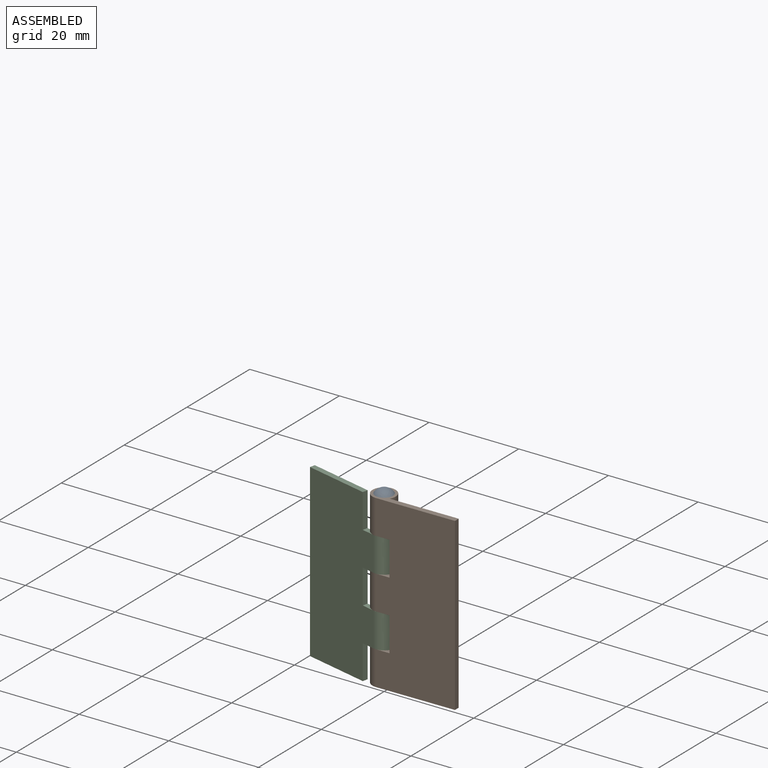
[diagram: assembled view]
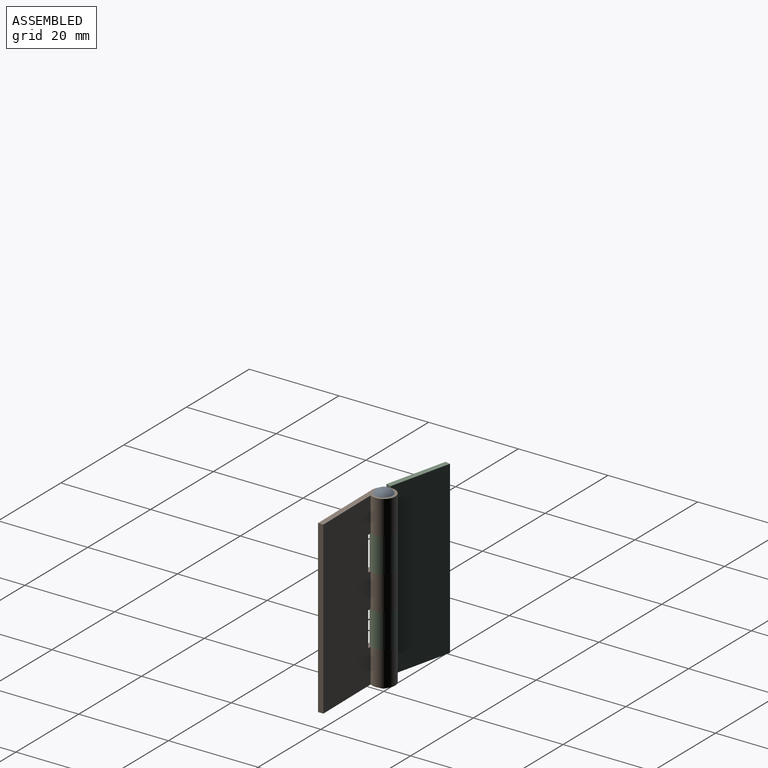
[diagram: assembled view, second angle]
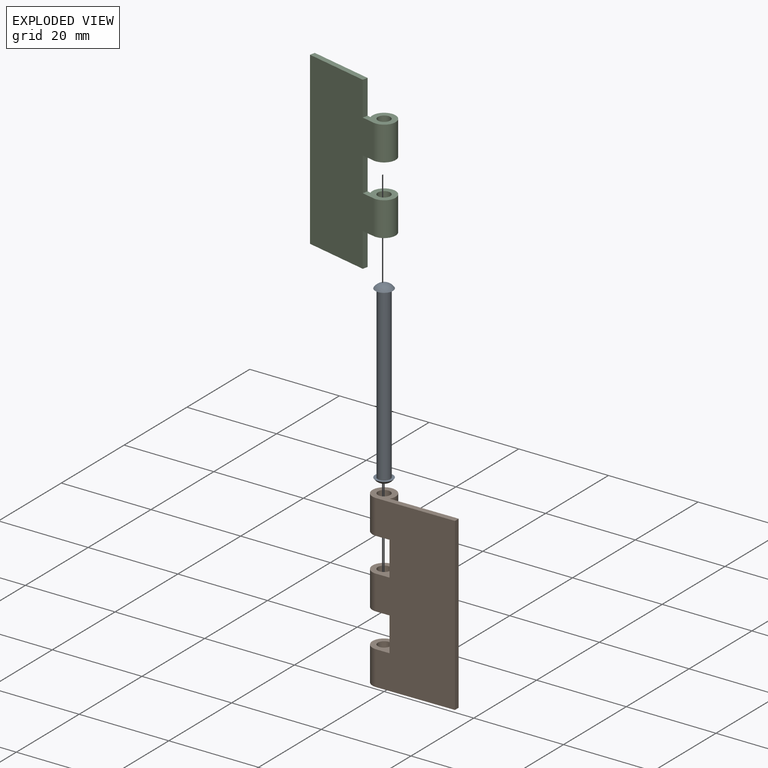
[diagram: exploded view]
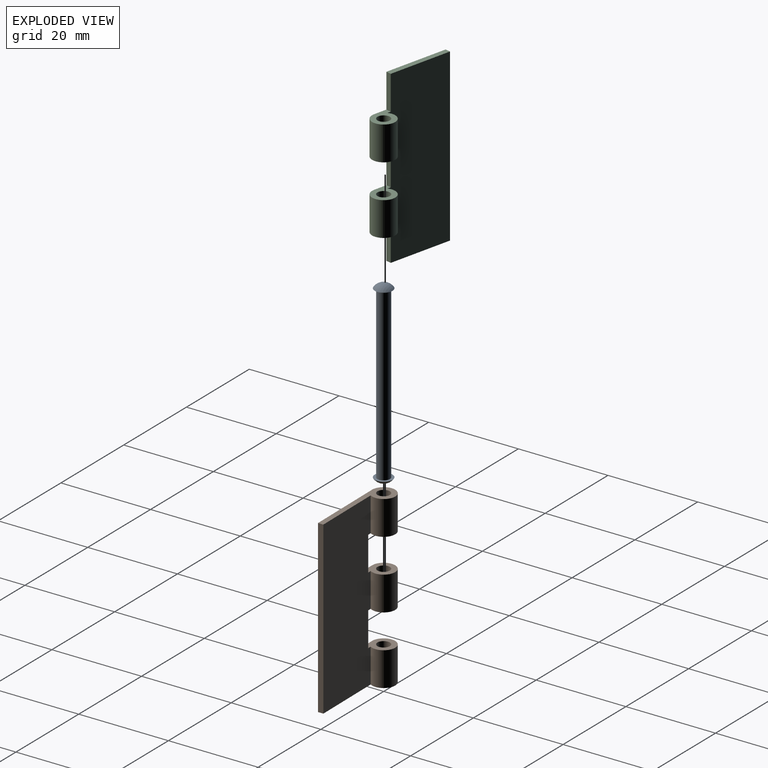
[diagram: exploded view, second angle]
ASSEMBLY  parts=3 mates=2
PART A: 5 faces, bbox 4x4x40.2 mm
  f0: cylinder r=1.39mm len=38.1mm, axis (0,0,-1), area 332.5mm2, adj f3,f4
  f1: sphere r=2.37mm, area 16mm2, adj f3
  f2: sphere r=2.37mm, area 16mm2, adj f4
  f3: plane 3.97x3.97mm, normal (0,0,-1), area 6.3mm2, adj f0,f1
  f4: plane 3.97x3.97mm, normal (0,0,1), area 6.3mm2, adj f0,f2
PART B: 17 faces, bbox 20x5.2x38.1 mm
  f0: cylinder r=1.39mm len=7.62mm, axis (0,0,-1), area 66.5mm2, adj f6,f16
  f1: cylinder r=2.58mm len=7.62mm, axis (0,0,-1), area 103.8mm2, adj f6,f9,f10,f16
  f2: cylinder r=1.39mm len=7.62mm, axis (0,0,-1), area 66.5mm2, adj f7,f12
  f3: cylinder r=2.58mm len=7.62mm, axis (0,0,-1), area 103.8mm2, adj f7,f9,f10,f12
  f4: cylinder r=1.39mm len=7.62mm, axis (0,0,-1), area 66.5mm2, adj f13,f15
  f5: cylinder r=2.58mm len=7.62mm, axis (0,0,-1), area 103.8mm2, adj f9,f10,f13,f15
  f6: plane 20.04x5.16mm, normal (0,0,1), area 33.9mm2, adj f0,f1,f8,f9,f10
  f7: plane 20.04x5.16mm, normal (0,0,-1), area 33.9mm2, adj f2,f3,f8,f9,f10
  f8: plane 38.1x1.19mm, normal (1,0,0), area 45.5mm2, adj f6,f7,f9,f10
  f9: plane 38.1x15.29mm, normal (0,1,0), area 570.5mm2, adj f1,f3,f5,f6,f7,f8,f11,f12
  f10: plane 38.1x17.46mm, normal (0,-1,0), area 620.2mm2, adj f1,f3,f5,f6,f7,f8,f11,f12
  f11: plane 7.62x1.19mm, normal (-1,0,0), area 9.1mm2, adj f9,f10,f12,f13
  f12: plane 5.54x5.16mm, normal (0,0,1), area 16.5mm2, adj f2,f3,f9,f10,f11
  f13: plane 5.54x5.16mm, normal (0,0,-1), area 16.5mm2, adj f4,f5,f9,f10,f11
  f14: plane 7.62x1.19mm, normal (-1,0,0), area 9.1mm2, adj f9,f10,f15,f16
  f15: plane 5.54x5.16mm, normal (0,0,1), area 16.5mm2, adj f4,f5,f9,f10,f14
  f16: plane 5.54x5.16mm, normal (0,0,-1), area 16.5mm2, adj f0,f1,f9,f10,f14
PART C: 16 faces, bbox 20x5.2x38.1 mm
  f0: cylinder r=1.39mm len=7.62mm, axis (0,0,-1), area 66.5mm2, adj f14,f15
  f1: cylinder r=2.58mm len=7.62mm, axis (0,0,-1), area 103.8mm2, adj f7,f9,f14,f15
  f2: cylinder r=1.39mm len=7.62mm, axis (0,0,-1), area 66.5mm2, adj f12,f13
  f3: cylinder r=2.58mm len=7.62mm, axis (0,0,-1), area 103.8mm2, adj f7,f9,f12,f13
  f4: plane 7.62x1.19mm, normal (1,0,0), area 9.1mm2, adj f7,f9,f12,f15
  f5: plane 7.62x1.19mm, normal (1,0,0), area 9.1mm2, adj f7,f9,f10,f14
  f6: plane 38.1x1.19mm, normal (-1,0,0), area 45.5mm2, adj f7,f9,f10,f11
  f7: plane 38.1x17.46mm, normal (0,-1,0), area 597.6mm2, adj f1,f3,f4,f5,f6,f8,f10,f11
  f8: plane 7.62x1.19mm, normal (1,0,0), area 9.1mm2, adj f7,f9,f11,f13
  f9: plane 38.1x15.29mm, normal (0,1,0), area 564.5mm2, adj f1,f3,f4,f5,f6,f8,f10,f11
  f10: plane 14.5x1.19mm, normal (0,0,1), area 17.3mm2, adj f5,f6,f7,f9
  f11: plane 14.5x1.19mm, normal (0,0,-1), area 17.3mm2, adj f6,f7,f8,f9
  f12: plane 5.54x5.16mm, normal (0,0,1), area 16.5mm2, adj f2,f3,f4,f7,f9
  f13: plane 5.54x5.16mm, normal (0,0,-1), area 16.5mm2, adj f2,f3,f7,f8,f9
  f14: plane 5.54x5.16mm, normal (0,0,1), area 16.5mm2, adj f0,f1,f5,f7,f9
  f15: plane 5.54x5.16mm, normal (0,0,-1), area 16.5mm2, adj f0,f1,f4,f7,f9
PLACE A at identity fixed
PLACE B rot(axis=(0,0,1),0.6deg) t=(0,0,0)mm
PLACE C rot(axis=(0,0,-1),13.3deg) t=(0,0,0)mm
MATE revolute B.f0 <-> C.f0  axis (0,0,-1) through (0,0,11.43)mm
MATE revolute A.f0 <-> B.f0  axis (0,0,1) through (0,0,19.05)mm
